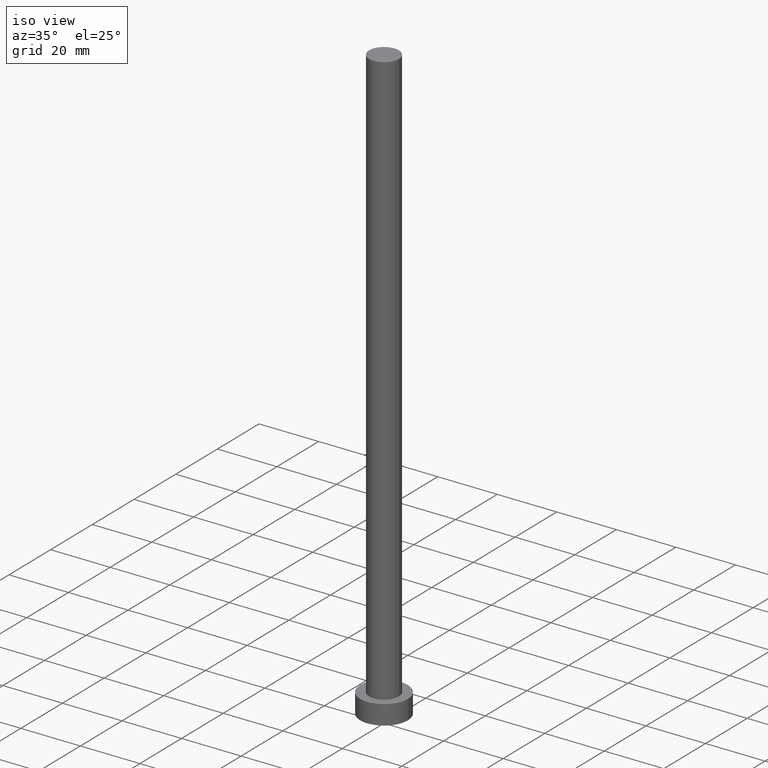
[diagram: clean part render]
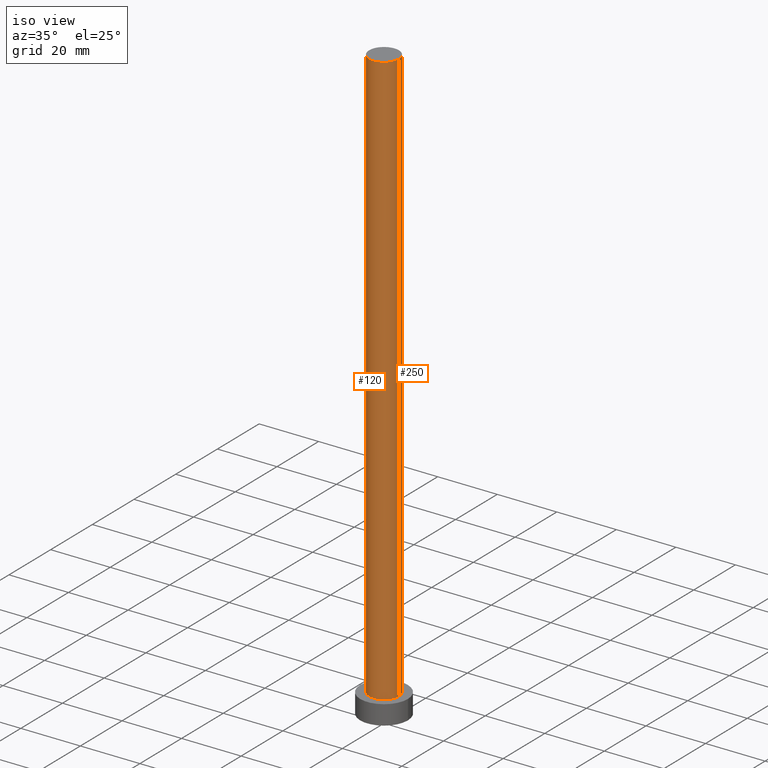
[diagram: same view with one multi-face feature highlighted, each face labeled with its STEP entity id]
A machine part, iso view. The highlighted faces form ONE feature: a constant-radius fillet chain: 2 tangent blend faces with common blend radius 5 mm. The faces share edges in the B-rep.
Their STEP definitions:
[1] entity #250 (Cylinder):
#2 = VERTEX_POINT ( 'NONE', #132 ) ;
#4 = CARTESIAN_POINT ( 'NONE',  ( 5.000000000000000888, 6.123233995736767268E-16, 200.0000000000000000 ) ) ;
#14 = DIRECTION ( 'NONE',  ( -0.000000000000000000, -0.000000000000000000, -1.000000000000000000 ) ) ;
#22 = ORIENTED_EDGE ( 'NONE', *, *, #55, .T. ) ;
#25 = CIRCLE ( 'NONE', #169, 5.000000000000000888 ) ;
#26 = ORIENTED_EDGE ( 'NONE', *, *, #36, .F. ) ;
#36 = EDGE_CURVE ( 'NONE', #2, #41, #255, .T. ) ;
#41 = VERTEX_POINT ( 'NONE', #171 ) ;
#43 = ORIENTED_EDGE ( 'NONE', *, *, #179, .T. ) ;
#52 = VERTEX_POINT ( 'NONE', #66 ) ;
#55 = EDGE_CURVE ( 'NONE', #52, #186, #25, .T. ) ;
#58 = AXIS2_PLACEMENT_3D ( 'NONE', #200, #14, #232 ) ;
#66 = CARTESIAN_POINT ( 'NONE',  ( 5.000000000000000888, 6.123233995736767268E-16, 6.500000000000000000 ) ) ;
#82 = EDGE_CURVE ( 'NONE', #41, #186, #97, .T. ) ;
#89 = DIRECTION ( 'NONE',  ( 0.000000000000000000, 0.000000000000000000, 1.000000000000000000 ) ) ;
#97 = LINE ( 'NONE', #174, #182 ) ;
#106 = DIRECTION ( 'NONE',  ( 1.000000000000000000, 0.000000000000000000, 0.000000000000000000 ) ) ;
#114 = FACE_OUTER_BOUND ( 'NONE', #247, .T. ) ;
#125 = VECTOR ( 'NONE', #246, 1000.000000000000000 ) ;
#132 = CARTESIAN_POINT ( 'NONE',  ( 5.000000000000000888, 6.123233995736767268E-16, 200.0000000000000000 ) ) ;
#162 = AXIS2_PLACEMENT_3D ( 'NONE', #204, #89, #106 ) ;
#168 = DIRECTION ( 'NONE',  ( 0.000000000000000000, 0.000000000000000000, 1.000000000000000000 ) ) ;
#169 = AXIS2_PLACEMENT_3D ( 'NONE', #187, #168, #208 ) ;
#171 = CARTESIAN_POINT ( 'NONE',  ( -5.000000000000000888, 0.000000000000000000, 200.0000000000000000 ) ) ;
#173 = LINE ( 'NONE', #4, #125 ) ;
#174 = CARTESIAN_POINT ( 'NONE',  ( -5.000000000000000888, 0.000000000000000000, 200.0000000000000000 ) ) ;
#179 = EDGE_CURVE ( 'NONE', #2, #52, #173, .T. ) ;
#182 = VECTOR ( 'NONE', #198, 1000.000000000000000 ) ;
#186 = VERTEX_POINT ( 'NONE', #223 ) ;
#187 = CARTESIAN_POINT ( 'NONE',  ( 0.000000000000000000, 0.000000000000000000, 6.500000000000000000 ) ) ;
#197 = CYLINDRICAL_SURFACE ( 'NONE', #58, 5.000000000000000888 ) ;
#198 = DIRECTION ( 'NONE',  ( -0.000000000000000000, -0.000000000000000000, -1.000000000000000000 ) ) ;
#200 = CARTESIAN_POINT ( 'NONE',  ( 0.000000000000000000, 0.000000000000000000, 200.0000000000000000 ) ) ;
#204 = CARTESIAN_POINT ( 'NONE',  ( 0.000000000000000000, 0.000000000000000000, 200.0000000000000000 ) ) ;
#208 = DIRECTION ( 'NONE',  ( 1.000000000000000000, 0.000000000000000000, 0.000000000000000000 ) ) ;
#223 = CARTESIAN_POINT ( 'NONE',  ( -5.000000000000000888, 0.000000000000000000, 6.500000000000000000 ) ) ;
#224 = ORIENTED_EDGE ( 'NONE', *, *, #82, .F. ) ;
#232 = DIRECTION ( 'NONE',  ( -1.000000000000000000, 0.000000000000000000, 0.000000000000000000 ) ) ;
#246 = DIRECTION ( 'NONE',  ( -0.000000000000000000, -0.000000000000000000, -1.000000000000000000 ) ) ;
#247 = EDGE_LOOP ( 'NONE', ( #26, #43, #22, #224 ) ) ;
#250 = ADVANCED_FACE ( 'NONE', ( #114 ), #197, .T. ) ;
#255 = CIRCLE ( 'NONE', #162, 5.000000000000000888 ) ;
[2] entity #120 (Cylinder):
#2 = VERTEX_POINT ( 'NONE', #132 ) ;
#4 = CARTESIAN_POINT ( 'NONE',  ( 5.000000000000000888, 6.123233995736767268E-16, 200.0000000000000000 ) ) ;
#19 = ORIENTED_EDGE ( 'NONE', *, *, #63, .F. ) ;
#21 = CARTESIAN_POINT ( 'NONE',  ( 0.000000000000000000, 0.000000000000000000, 6.500000000000000000 ) ) ;
#28 = EDGE_LOOP ( 'NONE', ( #46, #19, #243, #147 ) ) ;
#35 = CYLINDRICAL_SURFACE ( 'NONE', #228, 5.000000000000000888 ) ;
#41 = VERTEX_POINT ( 'NONE', #171 ) ;
#46 = ORIENTED_EDGE ( 'NONE', *, *, #179, .F. ) ;
#52 = VERTEX_POINT ( 'NONE', #66 ) ;
#63 = EDGE_CURVE ( 'NONE', #41, #2, #184, .T. ) ;
#65 = DIRECTION ( 'NONE',  ( -0.000000000000000000, -0.000000000000000000, -1.000000000000000000 ) ) ;
#66 = CARTESIAN_POINT ( 'NONE',  ( 5.000000000000000888, 6.123233995736767268E-16, 6.500000000000000000 ) ) ;
#75 = AXIS2_PLACEMENT_3D ( 'NONE', #21, #178, #188 ) ;
#82 = EDGE_CURVE ( 'NONE', #41, #186, #97, .T. ) ;
#86 = CIRCLE ( 'NONE', #75, 5.000000000000000888 ) ;
#97 = LINE ( 'NONE', #174, #182 ) ;
#109 = CARTESIAN_POINT ( 'NONE',  ( 0.000000000000000000, 0.000000000000000000, 200.0000000000000000 ) ) ;
#120 = ADVANCED_FACE ( 'NONE', ( #180 ), #35, .T. ) ;
#121 = DIRECTION ( 'NONE',  ( 1.000000000000000000, 0.000000000000000000, 0.000000000000000000 ) ) ;
#125 = VECTOR ( 'NONE', #246, 1000.000000000000000 ) ;
#132 = CARTESIAN_POINT ( 'NONE',  ( 5.000000000000000888, 6.123233995736767268E-16, 200.0000000000000000 ) ) ;
#137 = EDGE_CURVE ( 'NONE', #186, #52, #86, .T. ) ;
#147 = ORIENTED_EDGE ( 'NONE', *, *, #137, .T. ) ;
#148 = AXIS2_PLACEMENT_3D ( 'NONE', #109, #192, #121 ) ;
#156 = DIRECTION ( 'NONE',  ( -1.000000000000000000, 0.000000000000000000, 0.000000000000000000 ) ) ;
#171 = CARTESIAN_POINT ( 'NONE',  ( -5.000000000000000888, 0.000000000000000000, 200.0000000000000000 ) ) ;
#173 = LINE ( 'NONE', #4, #125 ) ;
#174 = CARTESIAN_POINT ( 'NONE',  ( -5.000000000000000888, 0.000000000000000000, 200.0000000000000000 ) ) ;
#178 = DIRECTION ( 'NONE',  ( 0.000000000000000000, 0.000000000000000000, 1.000000000000000000 ) ) ;
#179 = EDGE_CURVE ( 'NONE', #2, #52, #173, .T. ) ;
#180 = FACE_OUTER_BOUND ( 'NONE', #28, .T. ) ;
#182 = VECTOR ( 'NONE', #198, 1000.000000000000000 ) ;
#184 = CIRCLE ( 'NONE', #148, 5.000000000000000888 ) ;
#186 = VERTEX_POINT ( 'NONE', #223 ) ;
#188 = DIRECTION ( 'NONE',  ( 1.000000000000000000, 0.000000000000000000, 0.000000000000000000 ) ) ;
#192 = DIRECTION ( 'NONE',  ( 0.000000000000000000, 0.000000000000000000, 1.000000000000000000 ) ) ;
#198 = DIRECTION ( 'NONE',  ( -0.000000000000000000, -0.000000000000000000, -1.000000000000000000 ) ) ;
#223 = CARTESIAN_POINT ( 'NONE',  ( -5.000000000000000888, 0.000000000000000000, 6.500000000000000000 ) ) ;
#228 = AXIS2_PLACEMENT_3D ( 'NONE', #242, #65, #156 ) ;
#242 = CARTESIAN_POINT ( 'NONE',  ( 0.000000000000000000, 0.000000000000000000, 200.0000000000000000 ) ) ;
#243 = ORIENTED_EDGE ( 'NONE', *, *, #82, .T. ) ;
#246 = DIRECTION ( 'NONE',  ( -0.000000000000000000, -0.000000000000000000, -1.000000000000000000 ) ) ;